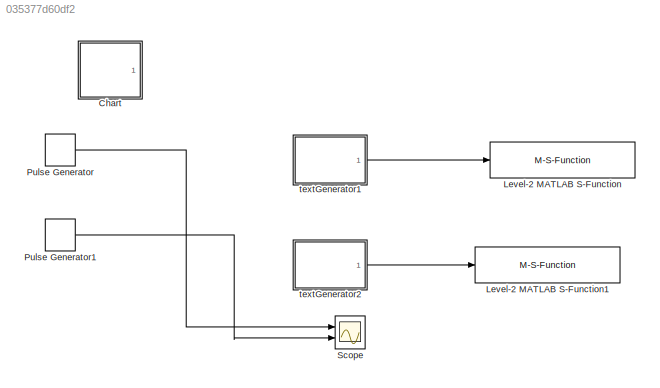
MODEL slx_035377d60df2
KIND model
WORKSPACE source: MAT-file member
WORKSPACE gtest = 0
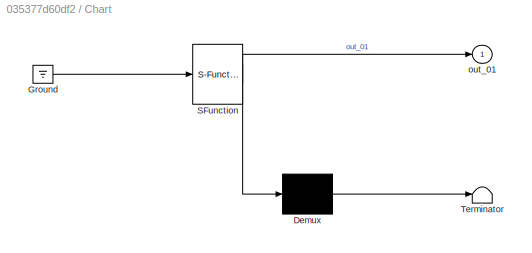
BLOCK [SubSystem] Chart
  ErrorFcn = Stateflow.Translate.translate
  PermitHierarchicalResolution = ExplicitOnly
  Ports = [0, 1]
  RequestExecContextInheritance = off
  SFBlockType = Chart
  TreatAsAtomicUnit = on
BLOCK [Demux] Chart/ Demux 
  Outputs = 1
  Ports = [1, 1]
BLOCK [Ground] Chart/ Ground 
BLOCK [S-Function] Chart/ SFunction 
  EnableBusSupport = on
  FunctionName = sf_sfun
  PortCounts = [1 2]
  Ports = [1, 2]
  Tag = Stateflow S-Function testYarpSendBML 3
BLOCK [Terminator] Chart/ Terminator 
BLOCK [Outport] Chart/out_01
  IconDisplay = Port number
BLOCK [M-S-Function] Level-2 MATLAB S-Function
  FunctionName = yarpSendText_sfun
  Parameters = '/sim/out/bml', '/rr'
  Ports = [1]
BLOCK [M-S-Function] Level-2 MATLAB S-Function1
  FunctionName = yarpSendText_sfun
  Parameters = '/sim/out/smb', '/rs'
  Ports = [1]
BLOCK [DiscretePulseGenerator] Pulse Generator
  Ports = [0, 1]
  PulseType = Time based
  PulseWidth = 5
BLOCK [DiscretePulseGenerator] Pulse Generator1
  Amplitude = 2
  Ports = [0, 1]
  PulseType = Time based
  PulseWidth = 50
BLOCK [Scope] Scope
  DataFormat = StructureWithTime
  Floating = off
  NumInputPorts = 2
  Ports = [2]
  SampleTime = 0
  ShowLegends = off
  YMax = 5~5
  YMin = -5~-5
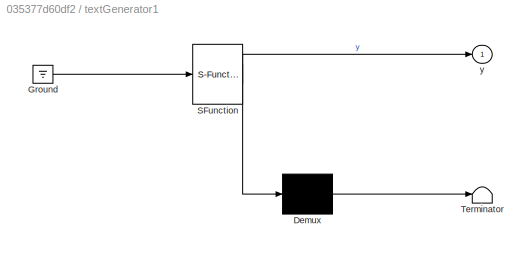
BLOCK [SubSystem] textGenerator1
  ErrorFcn = Stateflow.Translate.translate
  PermitHierarchicalResolution = ExplicitOnly
  Ports = [0, 1]
  RequestExecContextInheritance = off
  SFBlockType = MATLAB Function
  TreatAsAtomicUnit = on
BLOCK [Demux] textGenerator1/ Demux 
  Outputs = 1
  Ports = [1, 1]
BLOCK [Ground] textGenerator1/ Ground 
BLOCK [S-Function] textGenerator1/ SFunction 
  EnableBusSupport = on
  FunctionName = sf_sfun
  PortCounts = [1 2]
  Ports = [1, 2]
  Tag = Stateflow S-Function testYarpSendBML 1
BLOCK [Terminator] textGenerator1/ Terminator 
BLOCK [Outport] textGenerator1/y
  IconDisplay = Port number
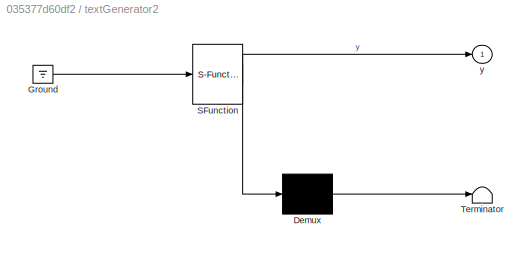
BLOCK [SubSystem] textGenerator2
  ErrorFcn = Stateflow.Translate.translate
  PermitHierarchicalResolution = ExplicitOnly
  Ports = [0, 1]
  RequestExecContextInheritance = off
  SFBlockType = MATLAB Function
  TreatAsAtomicUnit = on
BLOCK [Demux] textGenerator2/ Demux 
  Outputs = 1
  Ports = [1, 1]
BLOCK [Ground] textGenerator2/ Ground 
BLOCK [S-Function] textGenerator2/ SFunction 
  EnableBusSupport = on
  FunctionName = sf_sfun
  PortCounts = [1 2]
  Ports = [1, 2]
  Tag = Stateflow S-Function testYarpSendBML 2
BLOCK [Terminator] textGenerator2/ Terminator 
BLOCK [Outport] textGenerator2/y
  IconDisplay = Port number
LINE Pulse Generator1:1 -> Scope:2
LINE Pulse Generator:1 -> Scope:1
LINE textGenerator1:1 -> Level-2 MATLAB S-Function:1
LINE textGenerator2:1 -> Level-2 MATLAB S-Function1:1
